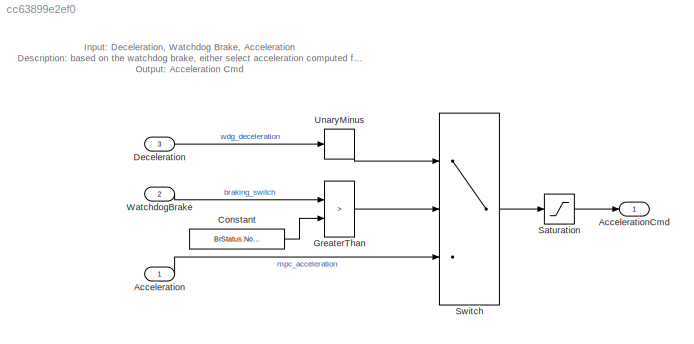
MODEL slx_cc63899e2ef0
KIND model
CONFIG AbsTol = auto
CONFIG EnableMultiTasking = on
CONFIG FixedStep = auto
CONFIG MaxStep = auto
CONFIG MinStep = auto
CONFIG RelTol = 1e-3
CONFIG SampleTimeConstraint = Unconstrained
CONFIG SolverName = FixedStepDiscrete
CONFIG StartTime = 0.0
CONFIG StopTime = 10.0
BLOCK [Inport] Acceleration
  OutDataTypeStr = Acceleration_DType
  OutMax = max_ac
  OutMin = min_ac-1
  PortDimensions = Acceleration_Dimensions
  SampleTime = Ts
  SamplingMode = Sample based
  SignalType = real
  Unit = m/s^2
  VarSizeSig = No
BLOCK [Outport] AccelerationCmd
  OutDataTypeStr = Acceleration_DType
  OutMax = max_ac
  OutMin = max_dc
  PortDimensions = Acceleration_Dimensions
  SampleTime = Ts
  SamplingMode = Sample based
  SignalName = accelerationCmd
  SignalType = real
  Unit = m/s^2
  VarSizeSig = No
  VectorParamsAs1DForOutWhenUnconnected = off
BLOCK [Constant] Constant
  OutDataTypeStr = Enum: BrStatus
  Value = BrStatus.NoBrake
BLOCK [Inport] Deceleration
  OutDataTypeStr = Acceleration_DType
  OutMax = FB_decel
  OutMin = Default_decel
  Port = 3
  PortDimensions = Acceleration_Dimensions
  SampleTime = Ts
  SamplingMode = Sample based
  SignalType = real
  Unit = m/s^2
  VarSizeSig = No
BLOCK [RelationalOperator] GreaterThan
  InputSameDT = off
  Operator = >
  RndMeth = Simplest
BLOCK [Saturate] Saturation
  AttributesFormatString = %<UpperLimit>\n%<LowerLimit>
  LowerLimit = max_dc
  UpperLimit = max_ac
BLOCK [Switch] Switch
  Criteria = u2 ~= 0
  InputSameDT = off
  SaturateOnIntegerOverflow = off
BLOCK [UnaryMinus] UnaryMinus
  SaturateOnIntegerOverflow = on
BLOCK [Inport] WatchdogBrake
  OutDataTypeStr = Enum: BrStatus
  Port = 2
  PortDimensions = BrStatus_Dimensions
  SampleTime = Ts
  SamplingMode = Sample based
  SignalType = real
  VarSizeSig = No
ANNOTATION (root): Input: Deceleration, Watchdog Brake, Acceleration Description: based on the watchdog brake, either select acceleration computed from the controller or the deceleration from the watchdog controller Output: Acceleration Cmd
LINE Acceleration:1 -> Switch:3
LINE Constant:1 -> GreaterThan:2
LINE Deceleration:1 -> UnaryMinus:1
LINE GreaterThan:1 -> Switch:2
LINE Saturation:1 -> AccelerationCmd:1
LINE Switch:1 -> Saturation:1
LINE UnaryMinus:1 -> Switch:1
LINE WatchdogBrake:1 -> GreaterThan:1
